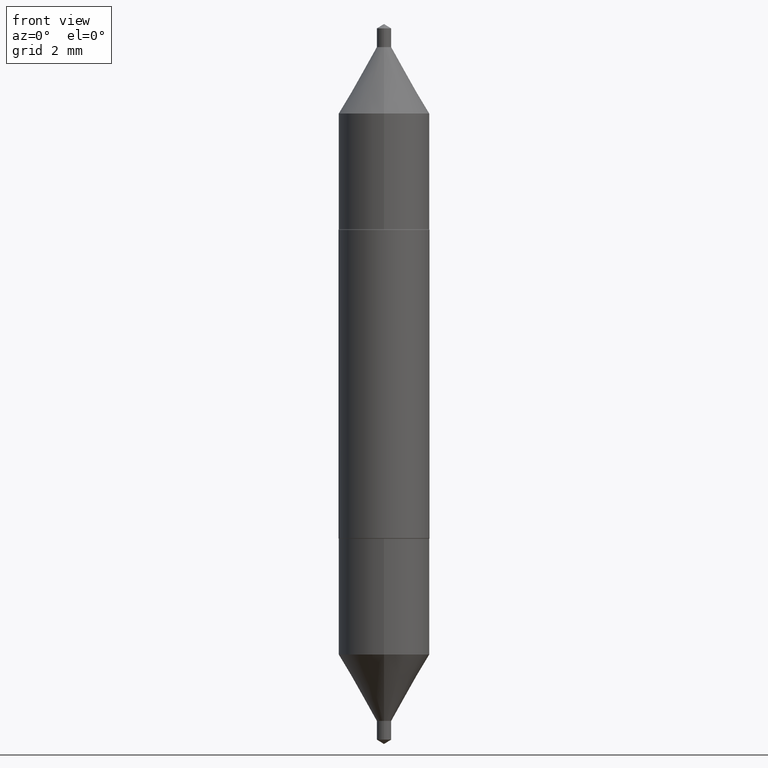
[diagram: clean part render]
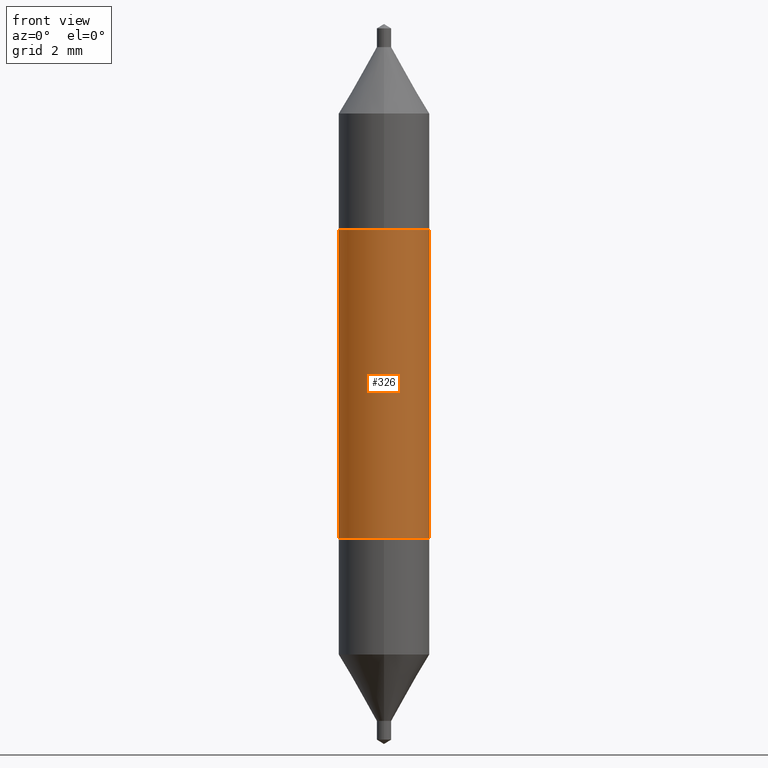
[diagram: same view with one face highlighted and labeled with its STEP entity id]
A machine part, front view. The second image highlights one B-rep face of the part: STEP entity #326.
In plain terms, the highlighted cylindrical surface (partial cylindrical patch) has radius 1.5748 mm, axis along (-0, 0, 1).
Its self-contained STEP definition (entity closure, byte-faithful):
#4 = AXIS2_PLACEMENT_3D ( 'NONE', #346, #613, #310 ) ;
#7 = ORIENTED_EDGE ( 'NONE', *, *, #37, .T. ) ;
#8 = EDGE_CURVE ( 'NONE', #266, #449, #74, .T. ) ;
#9 = DIRECTION ( 'NONE',  ( -2.445468806185136877E-29, 3.491481338843145188E-15, 1.000000000000000000 ) ) ;
#19 = ORIENTED_EDGE ( 'NONE', *, *, #172, .F. ) ;
#28 = AXIS2_PLACEMENT_3D ( 'NONE', #478, #693, #103 ) ;
#37 = EDGE_CURVE ( 'NONE', #449, #100, #57, .T. ) ;
#57 = LINE ( 'NONE', #492, #531 ) ;
#72 = CARTESIAN_POINT ( 'NONE',  ( 0.06200000000000001343, 3.002673951405117286E-16, 0.2099999999999999367 ) ) ;
#74 = CIRCLE ( 'NONE', #390, 0.06200000000000001343 ) ;
#80 = CARTESIAN_POINT ( 'NONE',  ( 5.135484492988785284E-30, -7.332110811570602923E-16, -0.2099999999999999367 ) ) ;
#100 = VERTEX_POINT ( 'NONE', #72 ) ;
#103 = DIRECTION ( 'NONE',  ( 1.000000000000000000, -6.982962677686266711E-15, 4.876176775795935793E-29 ) ) ;
#113 = FACE_OUTER_BOUND ( 'NONE', #185, .T. ) ;
#172 = EDGE_CURVE ( 'NONE', #534, #100, #315, .T. ) ;
#173 = CARTESIAN_POINT ( 'NONE',  ( -0.06200000000000001343, 4.405364961712622107E-16, -3.049739755958042274E-30 ) ) ;
#185 = EDGE_LOOP ( 'NONE', ( #553, #188, #7, #19 ) ) ;
#188 = ORIENTED_EDGE ( 'NONE', *, *, #8, .T. ) ;
#222 = CYLINDRICAL_SURFACE ( 'NONE', #28, 0.06200000000000001343 ) ;
#240 = VECTOR ( 'NONE', #593, 39.37007874015748143 ) ;
#266 = VERTEX_POINT ( 'NONE', #376 ) ;
#298 = DIRECTION ( 'NONE',  ( -2.445468806185136597E-29, 3.491481338843145583E-15, 1.000000000000000000 ) ) ;
#310 = DIRECTION ( 'NONE',  ( 1.000000000000000000, -6.982962677686266711E-15, 0.000000000000000000 ) ) ;
#315 = CIRCLE ( 'NONE', #4, 0.06200000000000001343 ) ;
#321 = LINE ( 'NONE', #173, #240 ) ;
#326 = ADVANCED_FACE ( 'NONE', ( #113 ), #222, .T. ) ;
#327 = CARTESIAN_POINT ( 'NONE',  ( 0.06200000000000001343, -1.166154767173608757E-15, -0.2099999999999999367 ) ) ;
#346 = CARTESIAN_POINT ( 'NONE',  ( -5.135484492988785284E-30, 7.332110811570602923E-16, 0.2099999999999999367 ) ) ;
#376 = CARTESIAN_POINT ( 'NONE',  ( -0.06200000000000001343, -2.926745849857981309E-16, -0.2099999999999999367 ) ) ;
#390 = AXIS2_PLACEMENT_3D ( 'NONE', #80, #298, #514 ) ;
#449 = VERTEX_POINT ( 'NONE', #327 ) ;
#478 = CARTESIAN_POINT ( 'NONE',  ( 0.000000000000000000, 0.000000000000000000, 0.000000000000000000 ) ) ;
#492 = CARTESIAN_POINT ( 'NONE',  ( 0.06200000000000001343, -4.329436860165486130E-16, 3.023229600993481018E-30 ) ) ;
#508 = CARTESIAN_POINT ( 'NONE',  ( -0.06200000000000001343, 4.405364961712622107E-16, 0.2099999999999999367 ) ) ;
#514 = DIRECTION ( 'NONE',  ( 1.000000000000000000, -6.982962677686265133E-15, 0.000000000000000000 ) ) ;
#531 = VECTOR ( 'NONE', #9, 39.37007874015748143 ) ;
#534 = VERTEX_POINT ( 'NONE', #508 ) ;
#553 = ORIENTED_EDGE ( 'NONE', *, *, #691, .F. ) ;
#593 = DIRECTION ( 'NONE',  ( -2.445468806185136877E-29, 3.491481338843145188E-15, 1.000000000000000000 ) ) ;
#613 = DIRECTION ( 'NONE',  ( -2.445468806185136597E-29, 3.491481338843145583E-15, 1.000000000000000000 ) ) ;
#691 = EDGE_CURVE ( 'NONE', #266, #534, #321, .T. ) ;
#693 = DIRECTION ( 'NONE',  ( -2.445468806185136597E-29, 3.491481338843145583E-15, 1.000000000000000000 ) ) ;